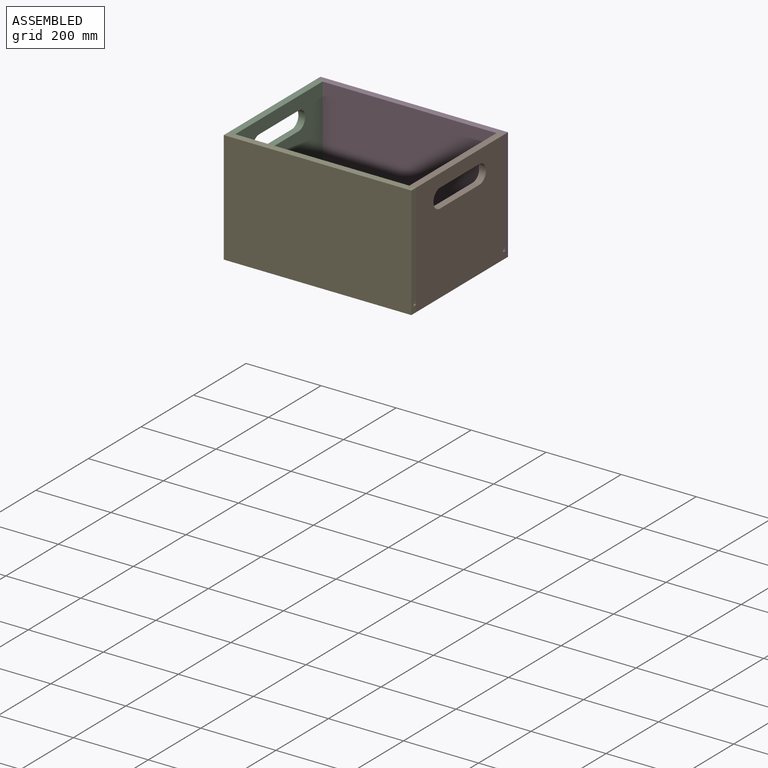
[diagram: assembled view]
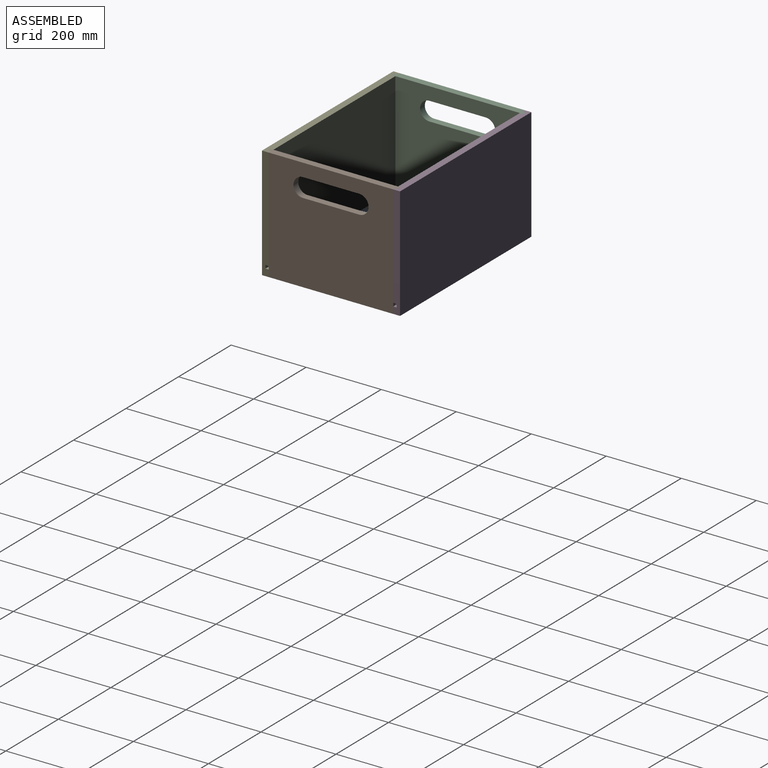
[diagram: assembled view, second angle]
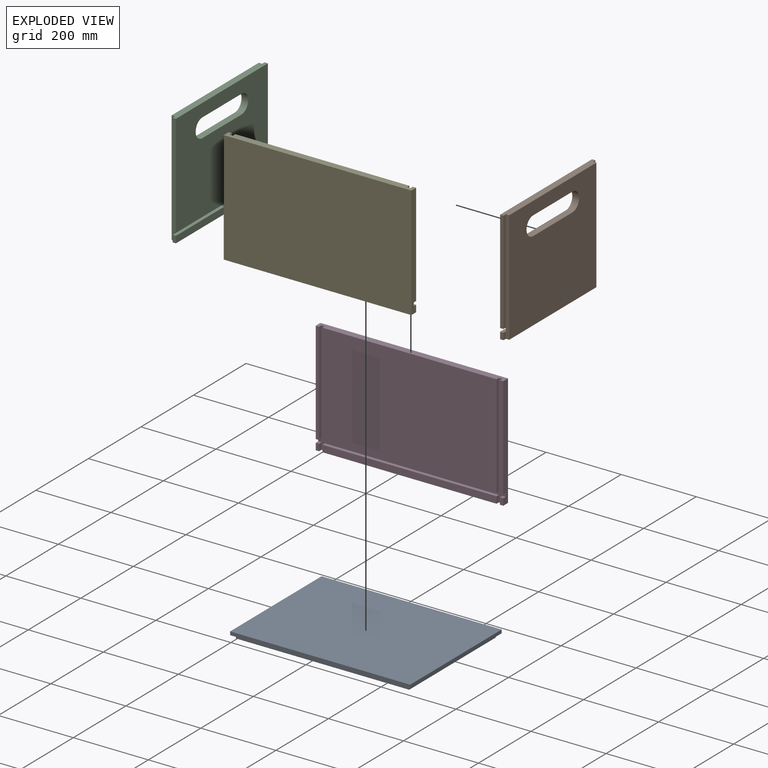
[diagram: exploded view]
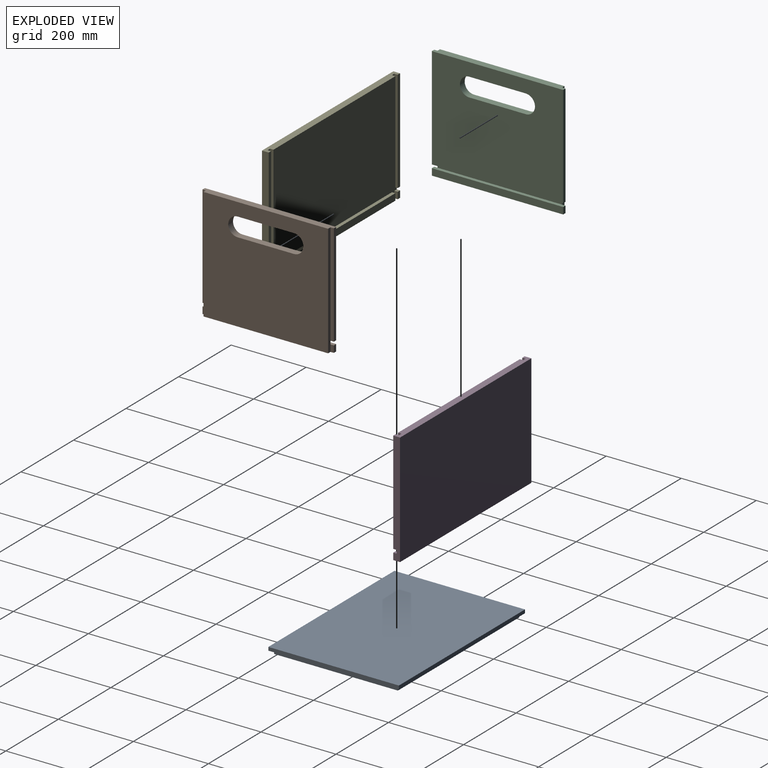
[diagram: exploded view, second angle]
ASSEMBLY  parts=5 mates=8
PART A: 11 faces, bbox 480x348x18 mm
  f0: plane 480x9mm, normal (0,1,0), area 4320mm2, adj f1,f3,f4,f9
  f1: plane 348x9mm, normal (-1,0,0), area 3132mm2, adj f0,f2,f4,f9
  f2: plane 480x9mm, normal (0,-1,0), area 4320mm2, adj f1,f3,f4,f9
  f3: plane 348x9mm, normal (1,0,0), area 3132mm2, adj f0,f2,f4,f9
  f4: plane 480x348mm, normal (0,0,-1), area 167040mm2, adj f0,f1,f2,f3
  f5: plane 462x9mm, normal (0,1,0), area 4158mm2, adj f6,f8,f9,f10
  f6: plane 330x9mm, normal (1,0,0), area 2970mm2, adj f5,f7,f9,f10
  f7: plane 462x9mm, normal (0,-1,0), area 4158mm2, adj f6,f8,f9,f10
  f8: plane 330x9mm, normal (-1,0,0), area 2970mm2, adj f5,f7,f9,f10
  f9: plane 480x348mm, normal (0,0,1), area 14580mm2, adj f0,f1,f2,f3,f5,f6,f7,f8
  f10: plane 462x330mm, normal (0,0,1), area 152460mm2, adj f5,f6,f7,f8
PART B: 22 faces, bbox 18x350x300 mm
  f0: plane 350x273mm, normal (1,0,0), area 86086.5mm2, adj f4,f6,f10,f11,f18,f19,f20,f21
  f1: plane 332x300mm, normal (-1,0,0), area 90136.5mm2, adj f6,f7,f12,f15,f18,f19,f20,f21
  f2: plane 332x9mm, normal (1,0,0), area 2988mm2, adj f9,f10,f12,f15
  f3: plane 18x9mm, normal (0,-1,0), area 162mm2, adj f7,f8,f9,f17
  f4: plane 273x9mm, normal (0,1,0), area 2457mm2, adj f0,f6,f10,f14
  f5: plane 18x9mm, normal (0,1,0), area 162mm2, adj f7,f8,f9,f13
  f6: plane 350x18mm, normal (0,0,1), area 6138mm2, adj f0,f1,f4,f11,f12,f14,f15,f16
  f7: plane 350x18mm, normal (0,0,-1), area 6138mm2, adj f1,f3,f5,f8,f12,f13,f15,f17
  f8: plane 350x18mm, normal (1,0,0), area 6300mm2, adj f3,f5,f7,f9
  f9: plane 350x9mm, normal (0,0,1), area 3150mm2, adj f2,f3,f5,f8,f13,f17
  f10: plane 350x9mm, normal (0,0,-1), area 3150mm2, adj f0,f2,f4,f11,f14,f16
  f11: plane 273x9mm, normal (0,-1,0), area 2457mm2, adj f0,f6,f10,f16
  f12: plane 300x9mm, normal (0,1,0), area 2700mm2, adj f1,f2,f6,f7,f13,f14
  f13: plane 18x9mm, normal (-1,0,0), area 162mm2, adj f5,f7,f9,f12
  f14: plane 273x9mm, normal (-1,0,0), area 2457mm2, adj f4,f6,f10,f12
  f15: plane 300x9mm, normal (0,-1,0), area 2700mm2, adj f1,f2,f6,f7,f16,f17
  f16: plane 273x9mm, normal (-1,0,0), area 2457mm2, adj f6,f10,f11,f15
  f17: plane 18x9mm, normal (-1,0,0), area 162mm2, adj f3,f7,f9,f15
  f18: plane 150x18mm, normal (0,0,-1), area 2700mm2, adj f0,f1,f19,f21
  f19: cylinder r=25mm len=50mm, axis (1,0,0), area 1413.7mm2, adj f0,f1,f18,f20
  f20: plane 150x18mm, normal (0,0,1), area 2700mm2, adj f0,f1,f19,f21
  f21: cylinder r=25mm len=50mm, axis (1,0,0), area 1413.7mm2, adj f0,f1,f18,f20
PART C: same geometry as B
PART D: 26 faces, bbox 18x500x300 mm
  f0: plane 464x273mm, normal (1,0,0), area 126672mm2, adj f2,f8,f18,f21
  f1: plane 273x9mm, normal (1,0,0), area 2457mm2, adj f2,f9,f16,f19
  f2: plane 500x18mm, normal (0,0,1), area 8838mm2, adj f0,f1,f10,f11,f14,f16,f17,f18
  f3: plane 500x18mm, normal (0,0,-1), area 8838mm2, adj f4,f5,f11,f12,f14,f16,f17,f22
  f4: plane 464x18mm, normal (1,0,0), area 8352mm2, adj f3,f6,f23,f24
  f5: plane 18x9mm, normal (1,0,0), area 162mm2, adj f3,f7,f16,f22
  f6: plane 464x9mm, normal (0,0,1), area 4176mm2, adj f4,f14,f23,f24
  f7: plane 9x9mm, normal (0,0,1), area 81mm2, adj f5,f14,f16,f22
  f8: plane 464x9mm, normal (0,0,-1), area 4176mm2, adj f0,f14,f18,f21
  f9: plane 9x9mm, normal (0,0,-1), area 81mm2, adj f1,f14,f16,f19
  f10: plane 273x9mm, normal (1,0,0), area 2457mm2, adj f2,f15,f17,f20
  f11: plane 500x300mm, normal (-1,0,0), area 150000mm2, adj f2,f3,f16,f17
  f12: plane 18x9mm, normal (1,0,0), area 162mm2, adj f3,f13,f17,f25
  f13: plane 9x9mm, normal (0,0,1), area 81mm2, adj f12,f14,f17,f25
  f14: plane 500x300mm, normal (1,0,0), area 9738mm2, adj f2,f3,f6,f7,f8,f9,f13,f15
  f15: plane 9x9mm, normal (0,0,-1), area 81mm2, adj f10,f14,f17,f20
  f16: plane 300x18mm, normal (0,-1,0), area 5319mm2, adj f1,f2,f3,f5,f7,f9,f11,f14
  f17: plane 300x18mm, normal (0,1,0), area 5319mm2, adj f2,f3,f10,f11,f12,f13,f14,f15
  f18: plane 273x9mm, normal (0,-1,0), area 2457mm2, adj f0,f2,f8,f14
  f19: plane 273x9mm, normal (0,1,0), area 2457mm2, adj f1,f2,f9,f14
  f20: plane 273x9mm, normal (0,-1,0), area 2457mm2, adj f2,f10,f14,f15
  f21: plane 273x9mm, normal (0,1,0), area 2457mm2, adj f0,f2,f8,f14
  f22: plane 18x9mm, normal (0,1,0), area 162mm2, adj f3,f5,f7,f14
  f23: plane 18x9mm, normal (0,-1,0), area 162mm2, adj f3,f4,f6,f14
  f24: plane 18x9mm, normal (0,1,0), area 162mm2, adj f3,f4,f6,f14
  f25: plane 18x9mm, normal (0,-1,0), area 162mm2, adj f3,f12,f13,f14
PART E: same geometry as D
PLACE A rot(axis=(1,0,0),180deg) t=(1000.7,-455.79,306.17)mm
PLACE B rot(axis=(0,0,-1),180deg) t=(1490.7,-804.79,279.17)mm
PLACE C rot(axis=(-0.46,-0.89,0),0deg) t=(990.7,-454.79,279.17)mm
PLACE D rot(axis=(0,0,-1),90deg) t=(1490.7,-445.79,279.17)mm
PLACE E rot(axis=(0,0,1),90deg) t=(990.7,-813.79,279.17)mm
MATE planar B.f7 <-> E.f3  axis (0,0,-1) through (1481.58,-629.79,279.17)mm
MATE cylindrical D.f2 <-> C.f6  axis (0,0,1) through (990.7,-463.79,579.17)mm
MATE slider B.f6 <-> D.f2  axis (0,0,1) through (1490.7,-463.79,579.17)mm
MATE planar D.f3 <-> C.f7  axis (0,0,-1) through (1240.7,-454.71,279.17)mm
MATE planar A.f4 <-> D.f8  axis (0,0,1) through (1240.7,-629.79,306.17)mm
MATE slider E.f2 <-> C.f6  axis (0,0,1) through (990.7,-795.79,579.17)mm
MATE slider A.f10 <-> E.f3  axis (0,0,-1) through (1009.7,-794.79,288.17)mm
MATE planar E.f3 <-> C.f7  axis (0,0,-1) through (1240.7,-804.87,279.17)mm
